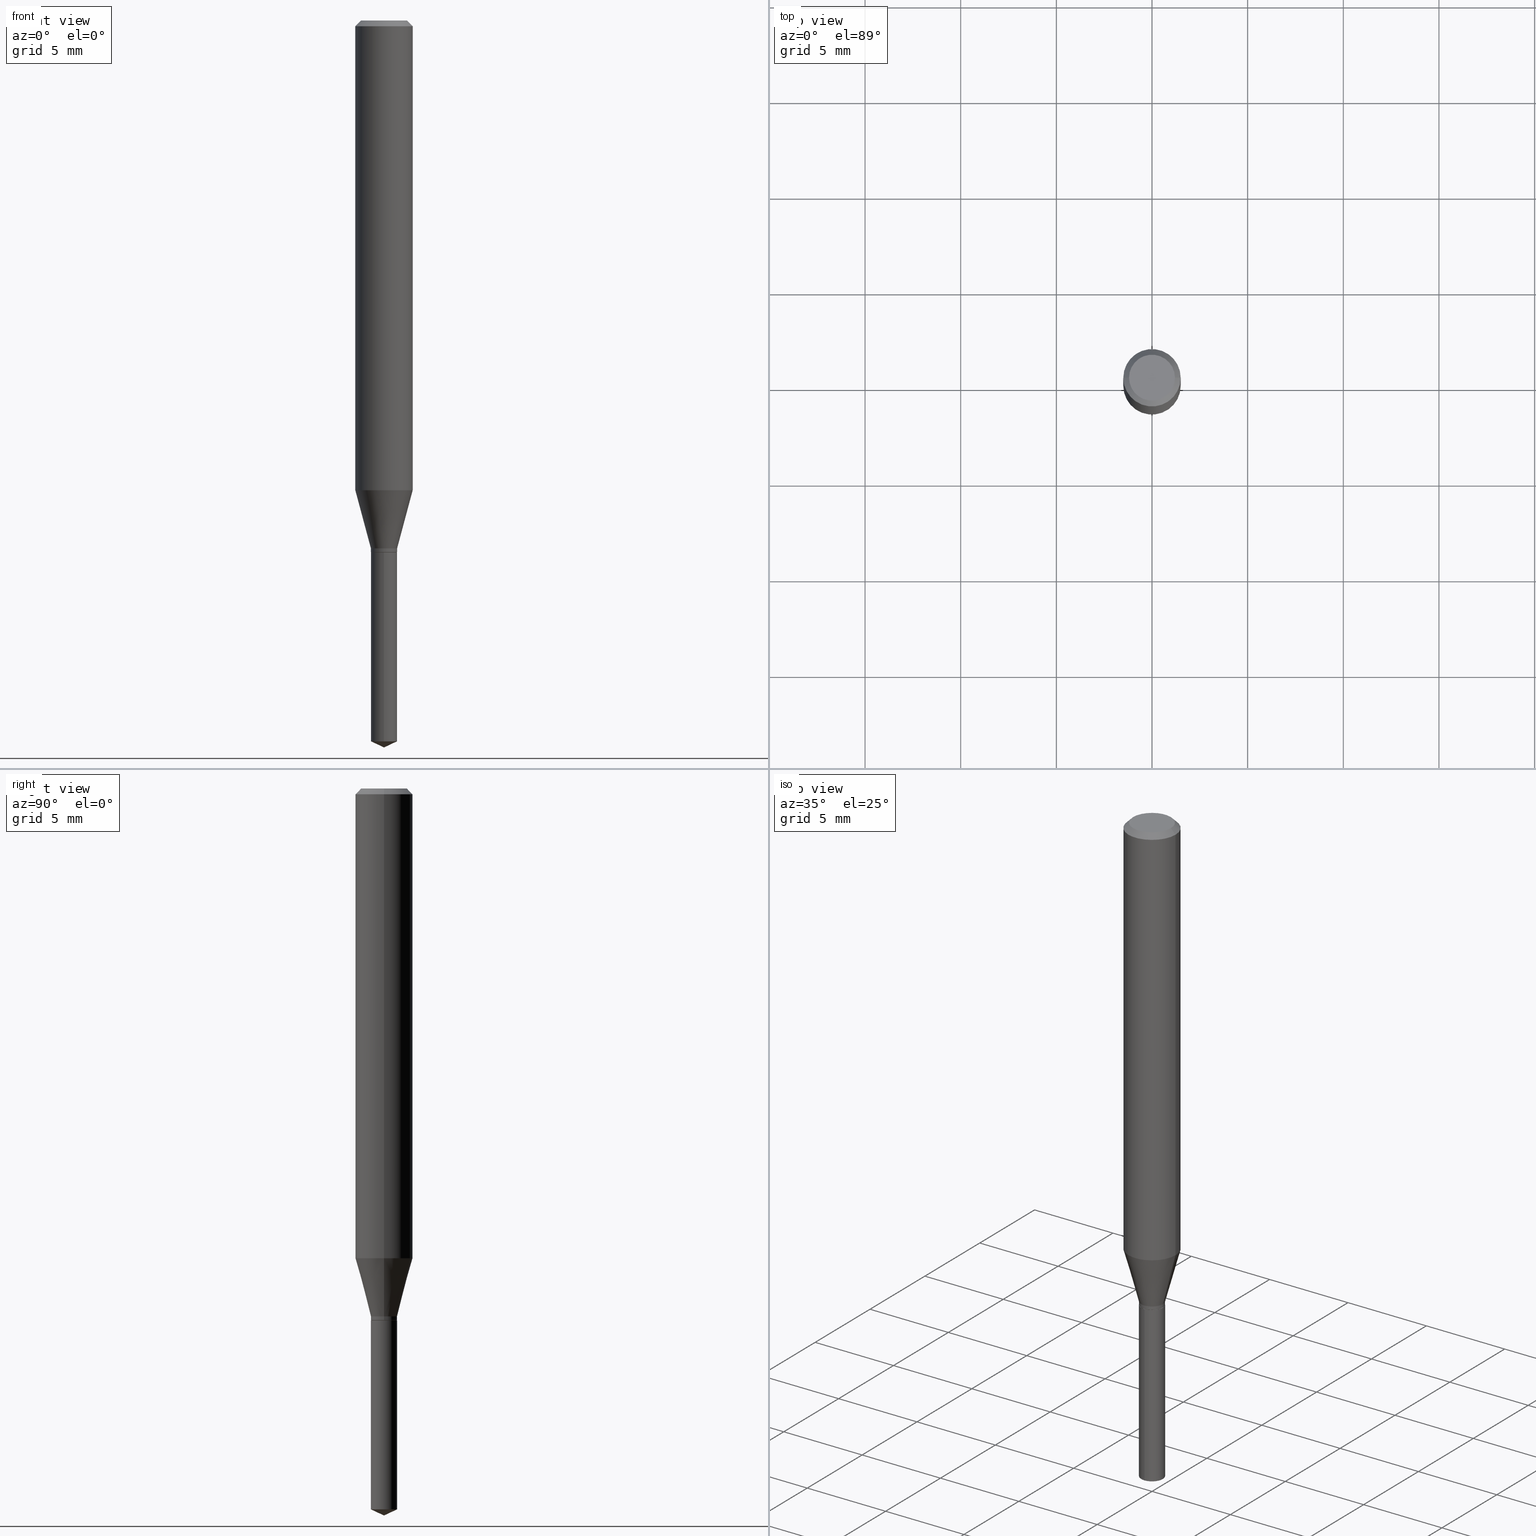
[diagram: canonical four-view strip — front | top / right | iso, engineering-drawing reading convention]
A machine part, canonical four-view strip (front | top / right | iso — engineering-drawing reading convention). The complete STEP part file that produces these views, byte-faithful:
ISO-10303-21;
HEADER;
FILE_DESCRIPTION (( 'STEP AP203' ),
    '1' );
FILE_NAME ('07869.STEP',
    '2024-04-24T04:56:01',
    ( '' ),
    ( '' ),
    'SwSTEP 2.0',
    'SolidWorks 2023',
    '' );
FILE_SCHEMA (( 'CONFIG_CONTROL_DESIGN' ));
ENDSEC;

DATA;
#1 = CARTESIAN_POINT ( 'NONE',  ( 0.02695000000000000173, -3.981336170682838022E-15, -1.086399999999999810 ) ) ;
#2 = ORIENTED_EDGE ( 'NONE', *, *, #385, .T. ) ;
#3 = CARTESIAN_POINT ( 'NONE',  ( 2.888098660104663328E-31, -4.123439461173779030E-17, -0.01181000000000006871 ) ) ;
#4 = ORIENTED_EDGE ( 'NONE', *, *, #218, .F. ) ;
#5 = APPROVAL_PERSON_ORGANIZATION ( #119, #370, #26 ) ;
#6 = EDGE_LOOP ( 'NONE', ( #456, #105, #411, #159 ) ) ;
#7 = ORIENTED_EDGE ( 'NONE', *, *, #330, .T. ) ;
#8 = ORIENTED_EDGE ( 'NONE', *, *, #265, .T. ) ;
#9 = AXIS2_PLACEMENT_3D ( 'NONE', #34, #172, #339 ) ;
#10 = VERTEX_POINT ( 'NONE', #228 ) ;
#11 = DIRECTION ( 'NONE',  ( 0.7071067811866199593, -2.468850131083015945E-15, 0.7071067811864750752 ) ) ;
#12 = EDGE_CURVE ( 'NONE', #10, #180, #347, .T. ) ;
#13 = FACE_OUTER_BOUND ( 'NONE', #72, .T. ) ;
#14 = EDGE_CURVE ( 'NONE', #107, #261, #247, .T. ) ;
#15 = CARTESIAN_POINT ( 'NONE',  ( 2.363793006999983413E-29, -3.374869943936449013E-15, -0.9666011690770388576 ) ) ;
#16 = DIRECTION ( 'NONE',  ( -2.445468806185136877E-29, 3.491481338843145188E-15, 1.000000000000000000 ) ) ;
#17 = FACE_OUTER_BOUND ( 'NONE', #99, .T. ) ;
#18 = COORDINATED_UNIVERSAL_TIME_OFFSET ( 5, 0, .BEHIND. ) ;
#19 = LINE ( 'NONE', #88, #195 ) ;
#20 = DATE_AND_TIME ( #483, #214 ) ;
#21 = DIRECTION ( 'NONE',  ( -2.445468806185136597E-29, 3.491481338843145583E-15, 1.000000000000000000 ) ) ;
#22 = CALENDAR_DATE ( 2024, 24, 4 ) ;
#23 = AXIS2_PLACEMENT_3D ( 'NONE', #395, #403, #51 ) ;
#24 = DIRECTION ( 'NONE',  ( 1.000000000000000000, -6.982962677686266711E-15, 0.000000000000000000 ) ) ;
#25 = CYLINDRICAL_SURFACE ( 'NONE', #429, 0.02695000000000000173 ) ;
#26 = APPROVAL_ROLE ( '' ) ;
#27 = DIRECTION ( 'NONE',  ( -1.000000000000000000, 6.982962677686265922E-15, -4.876176775795935793E-29 ) ) ;
#28 = ORIENTED_EDGE ( 'NONE', *, *, #69, .F. ) ;
#29 = AXIS2_PLACEMENT_3D ( 'NONE', #250, #277, #398 ) ;
#30 = VECTOR ( 'NONE', #453, 39.37007874015748143 ) ;
#31 = DIRECTION ( 'NONE',  ( -2.445470214571802116E-29, 3.491479321953280158E-15, 1.000000000000000000 ) ) ;
#32 = VERTEX_POINT ( 'NONE', #262 ) ;
#33 = EDGE_CURVE ( 'NONE', #169, #288, #112, .T. ) ;
#34 = CARTESIAN_POINT ( 'NONE',  ( 2.676565608369631234E-29, -3.821426325363821984E-15, -1.094499999999999806 ) ) ;
#35 = ORIENTED_EDGE ( 'NONE', *, *, #69, .T. ) ;
#36 = ORIENTED_EDGE ( 'NONE', *, *, #457, .T. ) ;
#37 = AXIS2_PLACEMENT_3D ( 'NONE', #393, #390, #421 ) ;
#38 = ORIENTED_EDGE ( 'NONE', *, *, #175, .F. ) ;
#39 = VERTEX_POINT ( 'NONE', #48 ) ;
#40 = EDGE_CURVE ( 'NONE', #32, #377, #386, .T. ) ;
#41 = DIRECTION ( 'NONE',  ( 1.000000000000000000, -6.982962677686266711E-15, 0.000000000000000000 ) ) ;
#42 = AXIS2_PLACEMENT_3D ( 'NONE', #310, #273, #149 ) ;
#43 = DIRECTION ( 'NONE',  ( 2.445468806185136597E-29, -3.491481338843145583E-15, -1.000000000000000000 ) ) ;
#44 =( NAMED_UNIT ( * ) PLANE_ANGLE_UNIT ( ) SI_UNIT ( $, .RADIAN. ) );
#45 = ADVANCED_FACE ( 'NONE', ( #424 ), #75, .T. ) ;
#46 = DIRECTION ( 'NONE',  ( -6.982962677686265133E-15, -1.000000000000000000, 5.068363624609022710E-15 ) ) ;
#47 = DIRECTION ( 'NONE',  ( 6.982962677686265922E-15, 1.000000000000000000, -3.491479321953280158E-15 ) ) ;
#48 = CARTESIAN_POINT ( 'NONE',  ( -0.05905000000000011628, -2.955294458470109520E-15, -0.9666011690770388576 ) ) ;
#49 = LINE ( 'NONE', #353, #190 ) ;
#50 = AXIS2_PLACEMENT_3D ( 'NONE', #92, #433, #482 ) ;
#51 = DIRECTION ( 'NONE',  ( 1.000000000000000000, -6.982962677686265133E-15, 0.000000000000000000 ) ) ;
#52 = LOCAL_TIME ( 0, 56, 1.000000000000000000, #122 ) ;
#53 = EDGE_LOOP ( 'NONE', ( #479, #243, #458, #308 ) ) ;
#54 = DIRECTION ( 'NONE',  ( 1.000000000000000000, -6.982962677686265133E-15, 0.000000000000000000 ) ) ;
#55 = APPROVAL_DATE_TIME ( #317, #370 ) ;
#56 = DIRECTION ( 'NONE',  ( 1.000000000000000000, -6.982962677686267499E-15, 4.876176775795936353E-29 ) ) ;
#57 = PERSON_AND_ORGANIZATION_ROLE ( 'design_owner' ) ;
#58 = DIRECTION ( 'NONE',  ( -2.445468806185136597E-29, 3.491481338843145583E-15, 1.000000000000000000 ) ) ;
#59 = COORDINATED_UNIVERSAL_TIME_OFFSET ( 5, 0, .BEHIND. ) ;
#60 = DIRECTION ( 'NONE',  ( 1.000000000000000000, -6.982962677686266711E-15, 4.876185090822587894E-29 ) ) ;
#61 = DATE_AND_TIME ( #22, #133 ) ;
#62 = ORIENTED_EDGE ( 'NONE', *, *, #309, .F. ) ;
#63 = CARTESIAN_POINT ( 'NONE',  ( 2.888098660104663328E-31, -4.123439461173779030E-17, -0.01181000000000006871 ) ) ;
#64 = EDGE_LOOP ( 'NONE', ( #234, #136, #301, #103 ) ) ;
#65 = DIRECTION ( 'NONE',  ( -2.445468806185136597E-29, 3.491481338843145583E-15, 1.000000000000000000 ) ) ;
#66 = EDGE_LOOP ( 'NONE', ( #469, #379, #374, #215 ) ) ;
#67 = AXIS2_PLACEMENT_3D ( 'NONE', #154, #43, #464 ) ;
#68 = AXIS2_PLACEMENT_3D ( 'NONE', #3, #140, #484 ) ;
#69 = EDGE_CURVE ( 'NONE', #210, #288, #79, .T. ) ;
#70 = DIRECTION ( 'NONE',  ( -1.000000000000000000, 6.982962677686266711E-15, 0.000000000000000000 ) ) ;
#71 = EDGE_LOOP ( 'NONE', ( #463, #415, #221, #28 ) ) ;
#72 = EDGE_LOOP ( 'NONE', ( #191, #35, #101, #141 ) ) ;
#73 = ORIENTED_EDGE ( 'NONE', *, *, #330, .F. ) ;
#74 = CONICAL_SURFACE ( 'NONE', #323, 84.42940631927388040, 1.134464013796313786 ) ;
#75 = CYLINDRICAL_SURFACE ( 'NONE', #42, 0.05905000000000006077 ) ;
#76 = CARTESIAN_POINT ( 'NONE',  ( 2.888098660104663328E-31, -4.123439461173779030E-17, -0.01181000000000006871 ) ) ;
#77 = LINE ( 'NONE', #352, #87 ) ;
#78 = AXIS2_PLACEMENT_3D ( 'NONE', #114, #150, #223 ) ;
#79 = CIRCLE ( 'NONE', #314, 0.02695000000000000173 ) ;
#80 = AXIS2_PLACEMENT_3D ( 'NONE', #391, #462, #47 ) ;
#81 = DIRECTION ( 'NONE',  ( -2.445468806185136597E-29, 3.491481338843145583E-15, 1.000000000000000000 ) ) ;
#82 = DIRECTION ( 'NONE',  ( -6.328713451373368590E-15, -0.9063077870366483824, 0.4226182617407029940 ) ) ;
#83 = DIRECTION ( 'NONE',  ( 1.000000000000000000, -6.982962677686265133E-15, 0.000000000000000000 ) ) ;
#84 = EDGE_CURVE ( 'NONE', #288, #377, #77, .T. ) ;
#85 = DIRECTION ( 'NONE',  ( -0.7071067811865453523, 2.468850131082234184E-15, -0.7071067811865496822 ) ) ;
#86 = SECURITY_CLASSIFICATION_LEVEL ( 'unclassified' ) ;
#87 = VECTOR ( 'NONE', #16, 39.37007874015748143 ) ;
#88 = CARTESIAN_POINT ( 'NONE',  ( -0.02695000000000000173, -3.601654059231846417E-15, -1.086399999999999810 ) ) ;
#89 = SECURITY_CLASSIFICATION ( '', '', #86 ) ;
#90 = ADVANCED_FACE ( 'NONE', ( #387 ), #211, .T. ) ;
#91 = APPROVAL_STATUS ( 'not_yet_approved' ) ;
#92 = CARTESIAN_POINT ( 'NONE',  ( 2.675342873966538993E-29, -3.819680584694400481E-15, -1.093999999999999861 ) ) ;
#93 = CARTESIAN_POINT ( 'NONE',  ( -0.04724000000000000421, 3.504923541997677355E-16, -3.380025165670481712E-19 ) ) ;
#94 = PERSON_AND_ORGANIZATION_ROLE ( 'classification_officer' ) ;
#95 = ADVANCED_FACE ( 'NONE', ( #13 ), #316, .T. ) ;
#96 = DIRECTION ( 'NONE',  ( -0.2588190451025213501, 5.211531920934551042E-15, 0.9659258262890682012 ) ) ;
#97 = CIRCLE ( 'NONE', #50, 0.02695000000000000173 ) ;
#98 = APPLICATION_PROTOCOL_DEFINITION ( 'international standard', 'config_control_design', 1994, #244 ) ;
#99 = EDGE_LOOP ( 'NONE', ( #220, #36, #217 ) ) ;
#100 = DIRECTION ( 'NONE',  ( 1.000000000000000000, -6.982962677686266711E-15, 4.876176775795935793E-29 ) ) ;
#101 = ORIENTED_EDGE ( 'NONE', *, *, #84, .T. ) ;
#102 = CARTESIAN_POINT ( 'NONE',  ( 4.132873053354867254E-48, -5.900647395337818946E-34, -1.690012582823346072E-19 ) ) ;
#103 = ORIENTED_EDGE ( 'NONE', *, *, #126, .F. ) ;
#104 = AXIS2_PLACEMENT_3D ( 'NONE', #15, #224, #345 ) ;
#105 = ORIENTED_EDGE ( 'NONE', *, *, #218, .T. ) ;
#106 = VERTEX_POINT ( 'NONE', #266 ) ;
#107 = VERTEX_POINT ( 'NONE', #187 ) ;
#108 = CYLINDRICAL_SURFACE ( 'NONE', #468, 0.02695000000000000173 ) ;
#109 = CIRCLE ( 'NONE', #397, 0.02695000000000000173 ) ;
#110 = DIRECTION ( 'NONE',  ( 0.2588190451025213501, 1.565188264969621968E-15, 0.9659258262890682012 ) ) ;
#111 = PERSON ( 'UNSPECIFIED', 'UNSPECIFIED', 'UNSPECIFIED', ('UNSPECIFIED'), ('UNSPECIFIED'), ('UNSPECIFIED') ) ;
#112 = LINE ( 'NONE', #115, #181 ) ;
#113 = EDGE_CURVE ( 'NONE', #299, #169, #467, .T. ) ;
#114 = CARTESIAN_POINT ( 'NONE',  ( 0.000000000000000000, 0.000000000000000000, 0.000000000000000000 ) ) ;
#115 = CARTESIAN_POINT ( 'NONE',  ( 0.02645000000000000129, -4.006125688188624162E-15, -1.094499999999999806 ) ) ;
#116 = DIRECTION ( 'NONE',  ( -2.445468806185136597E-29, 3.491481338843145583E-15, 1.000000000000000000 ) ) ;
#117 = EDGE_CURVE ( 'NONE', #381, #185, #426, .T. ) ;
#118 = FACE_OUTER_BOUND ( 'NONE', #64, .T. ) ;
#119 = PERSON_AND_ORGANIZATION ( #111, #153 ) ;
#120 = VECTOR ( 'NONE', #431, 39.37007874015748143 ) ;
#121 = DIRECTION ( 'NONE',  ( 0.7071067811865453523, -7.319954787623248157E-15, -0.7071067811865496822 ) ) ;
#122 = COORDINATED_UNIVERSAL_TIME_OFFSET ( 5, 0, .BEHIND. ) ;
#123 = CARTESIAN_POINT ( 'NONE',  ( 0.02645000000000000129, -4.006125688188624162E-15, -1.094499999999999806 ) ) ;
#124 = APPROVAL ( #251, 'UNSPECIFIED' ) ;
#125 = PERSON_AND_ORGANIZATION_ROLE ( 'creator' ) ;
#126 = EDGE_CURVE ( 'NONE', #377, #10, #461, .T. ) ;
#127 = CARTESIAN_POINT ( 'NONE',  ( 1.914912672873737351E-16, 0.02694999999999618187, -1.094500000000000028 ) ) ;
#128 = ADVANCED_BREP_SHAPE_REPRESENTATION ( '07869', ( #355, #359, #249 ), #341 ) ;
#129 = PERSON_AND_ORGANIZATION ( #111, #153 ) ;
#130 = AXIS2_PLACEMENT_3D ( 'NONE', #428, #81, #422 ) ;
#131 = LINE ( 'NONE', #194, #222 ) ;
#132 = CIRCLE ( 'NONE', #263, 0.04724000000000000421 ) ;
#133 = LOCAL_TIME ( 0, 56, 1.000000000000000000, #361 ) ;
#134 = CC_DESIGN_DATE_AND_TIME_ASSIGNMENT ( #207, #158, ( #89 ) ) ;
#135 = CYLINDRICAL_SURFACE ( 'NONE', #371, 0.05905000000000006077 ) ;
#136 = ORIENTED_EDGE ( 'NONE', *, *, #164, .T. ) ;
#137 = DIRECTION ( 'NONE',  ( -6.982962677686265133E-15, -1.000000000000000000, 5.068363624609022710E-15 ) ) ;
#138 = EDGE_CURVE ( 'NONE', #259, #180, #447, .T. ) ;
#139 = ORIENTED_EDGE ( 'NONE', *, *, #309, .T. ) ;
#140 = DIRECTION ( 'NONE',  ( -2.445468806185136597E-29, 3.491481338843145583E-15, 1.000000000000000000 ) ) ;
#141 = ORIENTED_EDGE ( 'NONE', *, *, #40, .F. ) ;
#142 = AXIS2_PLACEMENT_3D ( 'NONE', #102, #296, #27 ) ;
#143 = VECTOR ( 'NONE', #268, 39.37007874015748143 ) ;
#144 = EDGE_LOOP ( 'NONE', ( #8, #302, #413, #225 ) ) ;
#145 = ORIENTED_EDGE ( 'NONE', *, *, #138, .F. ) ;
#146 = CARTESIAN_POINT ( 'NONE',  ( 2.656757311039532110E-29, -3.793145326519192838E-15, -1.086399999999999810 ) ) ;
#147 = CONICAL_SURFACE ( 'NONE', #184, 0.05904999999999999832, 0.7853981633974452814 ) ;
#148 = DIRECTION ( 'NONE',  ( -2.445468806185136877E-29, 3.491481338843145188E-15, 1.000000000000000000 ) ) ;
#149 = DIRECTION ( 'NONE',  ( 1.000000000000000000, -6.982962677686266711E-15, 4.876176775795935793E-29 ) ) ;
#150 = DIRECTION ( 'NONE',  ( -2.445468806185136597E-29, 3.491481338843145583E-15, 1.000000000000000000 ) ) ;
#151 = DIRECTION ( 'NONE',  ( -2.445470214571802116E-29, 3.491479321953280158E-15, 1.000000000000000000 ) ) ;
#152 = VECTOR ( 'NONE', #110, 39.37007874015747433 ) ;
#153 = ORGANIZATION ( 'UNSPECIFIED', 'UNSPECIFIED', '' ) ;
#154 = CARTESIAN_POINT ( 'NONE',  ( 2.888098660104663328E-31, -4.123439461173779030E-17, -0.01181000000000006871 ) ) ;
#155 = LINE ( 'NONE', #274, #120 ) ;
#156 = EDGE_CURVE ( 'NONE', #377, #32, #419, .T. ) ;
#157 = CARTESIAN_POINT ( 'NONE',  ( -0.02645000000000000129, -3.630838544581165261E-15, -1.094499999999999806 ) ) ;
#158 = DATE_TIME_ROLE ( 'classification_date' ) ;
#159 = ORIENTED_EDGE ( 'NONE', *, *, #272, .F. ) ;
#160 = PLANE ( 'NONE',  #173 ) ;
#161 = MECHANICAL_CONTEXT ( 'NONE', #171, 'mechanical' ) ;
#162 = AXIS2_PLACEMENT_3D ( 'NONE', #212, #31, #137 ) ;
#163 = CARTESIAN_POINT ( 'NONE',  ( 8.265746106709734507E-48, -1.180129479067563789E-33, -3.380025165646692144E-19 ) ) ;
#164 = EDGE_CURVE ( 'NONE', #32, #39, #19, .T. ) ;
#165 = CALENDAR_DATE ( 2024, 24, 4 ) ;
#166 = LINE ( 'NONE', #337, #257 ) ;
#167 = PERSON_AND_ORGANIZATION ( #111, #153 ) ;
#168 = CARTESIAN_POINT ( 'NONE',  ( 0.000000000000000000, 0.000000000000000000, 0.000000000000000000 ) ) ;
#169 = VERTEX_POINT ( 'NONE', #123 ) ;
#170 = ADVANCED_FACE ( 'NONE', ( #118 ), #236, .T. ) ;
#171 = APPLICATION_CONTEXT ( 'configuration controlled 3d designs of mechanical parts and assemblies' ) ;
#172 = DIRECTION ( 'NONE',  ( -2.445468806185136597E-29, 3.491481338843145583E-15, 1.000000000000000000 ) ) ;
#173 = AXIS2_PLACEMENT_3D ( 'NONE', #200, #321, #366 ) ;
#174 = ORIENTED_EDGE ( 'NONE', *, *, #113, .F. ) ;
#175 = EDGE_CURVE ( 'NONE', #261, #107, #486, .T. ) ;
#176 = FACE_OUTER_BOUND ( 'NONE', #450, .T. ) ;
#177 = ORIENTED_EDGE ( 'NONE', *, *, #272, .T. ) ;
#178 = ADVANCED_FACE ( 'NONE', ( #199 ), #160, .F. ) ;
#179 = DIRECTION ( 'NONE',  ( -2.445470214571802116E-29, 3.491479321953280158E-15, 1.000000000000000000 ) ) ;
#180 = VERTEX_POINT ( 'NONE', #400 ) ;
#181 = VECTOR ( 'NONE', #11, 39.37007874015748143 ) ;
#182 = EDGE_CURVE ( 'NONE', #246, #106, #487, .T. ) ;
#183 = ORIENTED_EDGE ( 'NONE', *, *, #33, .F. ) ;
#184 = AXIS2_PLACEMENT_3D ( 'NONE', #63, #412, #70 ) ;
#185 = VERTEX_POINT ( 'NONE', #206 ) ;
#186 = DESIGN_CONTEXT ( 'detailed design', #244, 'design' ) ;
#187 = CARTESIAN_POINT ( 'NONE',  ( 1.914912672873832260E-16, 0.02694999999999482185, -1.483533008612722748 ) ) ;
#188 = CARTESIAN_POINT ( 'NONE',  ( 2.656757311039532110E-29, -3.793145326519192838E-15, -1.086399999999999810 ) ) ;
#189 = FACE_OUTER_BOUND ( 'NONE', #255, .T. ) ;
#190 = VECTOR ( 'NONE', #82, 39.37007874015748143 ) ;
#191 = ORIENTED_EDGE ( 'NONE', *, *, #417, .F. ) ;
#192 = CARTESIAN_POINT ( 'NONE',  ( 0.02695000000000000173, -3.981336170682838022E-15, -1.086399999999999810 ) ) ;
#193 = CARTESIAN_POINT ( 'NONE',  ( 2.675342873966538993E-29, -3.819680584694400481E-15, -1.093999999999999861 ) ) ;
#194 = CARTESIAN_POINT ( 'NONE',  ( -0.02645000000000000129, -3.633487771755275673E-15, -1.094499999999999806 ) ) ;
#195 = VECTOR ( 'NONE', #96, 39.37007874015747433 ) ;
#196 = CONICAL_SURFACE ( 'NONE', #292, 0.02645000000000000129, 0.7853981633975507526 ) ;
#197 = LOCAL_TIME ( 0, 56, 1.000000000000000000, #18 ) ;
#198 = CARTESIAN_POINT ( 'NONE',  ( -0.05904999999999999832, 3.711095515056362547E-16, -0.01181000000000006871 ) ) ;
#199 = FACE_OUTER_BOUND ( 'NONE', #418, .T. ) ;
#200 = CARTESIAN_POINT ( 'NONE',  ( 6.623467627228202224E-29, 1.830762009353637179E-15, -1.094499999999999806 ) ) ;
#201 = APPROVAL_ROLE ( '' ) ;
#202 = VECTOR ( 'NONE', #121, 39.37007874015748143 ) ;
#203 = CARTESIAN_POINT ( 'NONE',  ( 0.02695000000000000173, -4.007871428858045665E-15, -1.093999999999999861 ) ) ;
#204 = CC_DESIGN_APPROVAL ( #124, ( #372 ) ) ;
#205 = PERSON_AND_ORGANIZATION ( #111, #153 ) ;
#206 = CARTESIAN_POINT ( 'NONE',  ( -1.881908441636181167E-16, -0.02695000000000382159, -1.094499999999999806 ) ) ;
#207 = DATE_AND_TIME ( #367, #197 ) ;
#208 = EDGE_LOOP ( 'NONE', ( #2, #304, #295, #183 ) ) ;
#209 = CARTESIAN_POINT ( 'NONE',  ( -1.881908441636181167E-16, -0.02695000000000382159, -1.094499999999999806 ) ) ;
#210 = VERTEX_POINT ( 'NONE', #445 ) ;
#211 = CONICAL_SURFACE ( 'NONE', #67, 0.05904999999999999832, 0.7853981633974452814 ) ;
#212 = CARTESIAN_POINT ( 'NONE',  ( 2.676565608369631794E-29, -3.821426325363822773E-15, -1.094499999999999806 ) ) ;
#213 = CONICAL_SURFACE ( 'NONE', #9, 0.02645000000000000129, 0.7853981633975507526 ) ;
#214 = LOCAL_TIME ( 0, 56, 1.000000000000000000, #59 ) ;
#215 = ORIENTED_EDGE ( 'NONE', *, *, #117, .F. ) ;
#216 = DIRECTION ( 'NONE',  ( -2.445468806185136597E-29, 3.491481338843145583E-15, 1.000000000000000000 ) ) ;
#217 = ORIENTED_EDGE ( 'NONE', *, *, #14, .F. ) ;
#218 = EDGE_CURVE ( 'NONE', #106, #180, #241, .T. ) ;
#219 = EDGE_CURVE ( 'NONE', #107, #381, #331, .T. ) ;
#220 = ORIENTED_EDGE ( 'NONE', *, *, #311, .F. ) ;
#221 = ORIENTED_EDGE ( 'NONE', *, *, #33, .T. ) ;
#222 = VECTOR ( 'NONE', #425, 39.37007874015748143 ) ;
#223 = DIRECTION ( 'NONE',  ( 1.000000000000000000, -6.982962677686267499E-15, 4.876176775795936353E-29 ) ) ;
#224 = DIRECTION ( 'NONE',  ( -2.445468806185136597E-29, 3.491481338843145583E-15, 1.000000000000000000 ) ) ;
#225 = ORIENTED_EDGE ( 'NONE', *, *, #84, .F. ) ;
#226 =( CONVERSION_BASED_UNIT ( 'INCH', #389 ) LENGTH_UNIT ( ) NAMED_UNIT ( #232 ) );
#227 = ADVANCED_FACE ( 'NONE', ( #325 ), #25, .T. ) ;
#228 = CARTESIAN_POINT ( 'NONE',  ( 0.05905000000000011628, -3.787213890053824327E-15, -0.9666011690770388576 ) ) ;
#229 = CARTESIAN_POINT ( 'NONE',  ( 3.658667988020872822E-29, -5.223602213574301462E-15, -1.496099999999999985 ) ) ;
#230 = EDGE_CURVE ( 'NONE', #106, #246, #132, .T. ) ;
#231 = DIRECTION ( 'NONE',  ( -2.445470214571802116E-29, 3.491479321953280158E-15, 1.000000000000000000 ) ) ;
#232 = DIMENSIONAL_EXPONENTS ( 1.000000000000000000, 0.000000000000000000, 0.000000000000000000, 0.000000000000000000, 0.000000000000000000, 0.000000000000000000, 0.000000000000000000 ) ;
#233 = DIRECTION ( 'NONE',  ( -6.982962677686265133E-15, -1.000000000000000000, 5.068363624609022710E-15 ) ) ;
#234 = ORIENTED_EDGE ( 'NONE', *, *, #156, .T. ) ;
#235 = CARTESIAN_POINT ( 'NONE',  ( 8.265746106709734507E-48, -1.180129479067563789E-33, -3.380025165646692144E-19 ) ) ;
#236 = CONICAL_SURFACE ( 'NONE', #29, 0.02695000000000000173, 0.2617993877991500740 ) ;
#237 = AXIS2_PLACEMENT_3D ( 'NONE', #439, #480, #285 ) ;
#238 = DIRECTION ( 'NONE',  ( -2.445468806185136597E-29, 3.491481338843145583E-15, 1.000000000000000000 ) ) ;
#239 = PERSON_AND_ORGANIZATION ( #111, #153 ) ;
#240 = ADVANCED_FACE ( 'NONE', ( #435 ), #196, .T. ) ;
#241 = LINE ( 'NONE', #472, #202 ) ;
#242 = DIRECTION ( 'NONE',  ( 0.000000000000000000, 0.000000000000000000, 1.000000000000000000 ) ) ;
#243 = ORIENTED_EDGE ( 'NONE', *, *, #416, .T. ) ;
#244 = APPLICATION_CONTEXT ( 'configuration controlled 3d designs of mechanical parts and assemblies' ) ;
#245 = FACE_OUTER_BOUND ( 'NONE', #452, .T. ) ;
#246 = VERTEX_POINT ( 'NONE', #93 ) ;
#247 = CIRCLE ( 'NONE', #37, 0.02695000000000000173 ) ;
#248 = PRODUCT ( '07869', '07869', '', ( #161 ) ) ;
#249 = AXIS2_PLACEMENT_3D ( 'NONE', #278, #242, #401 ) ;
#250 = CARTESIAN_POINT ( 'NONE',  ( 2.656757311039532110E-29, -3.793145326519192838E-15, -1.086399999999999810 ) ) ;
#251 = APPROVAL_STATUS ( 'not_yet_approved' ) ;
#252 = DIRECTION ( 'NONE',  ( -6.982962677686265133E-15, -1.000000000000000000, 5.068363624609022710E-15 ) ) ;
#253 = ADVANCED_FACE ( 'NONE', ( #17 ), #315, .T. ) ;
#254 = FACE_OUTER_BOUND ( 'NONE', #260, .T. ) ;
#255 = EDGE_LOOP ( 'NONE', ( #338, #459, #38 ) ) ;
#256 = FACE_OUTER_BOUND ( 'NONE', #66, .T. ) ;
#257 = VECTOR ( 'NONE', #373, 39.37007874015748143 ) ;
#258 = CC_DESIGN_SECURITY_CLASSIFICATION ( #89, ( #372 ) ) ;
#259 = VERTEX_POINT ( 'NONE', #290 ) ;
#260 = EDGE_LOOP ( 'NONE', ( #332, #139, #485, #145 ) ) ;
#261 = VERTEX_POINT ( 'NONE', #275 ) ;
#262 = CARTESIAN_POINT ( 'NONE',  ( -0.02695000000000000173, -3.614921688319449844E-15, -1.086399999999999810 ) ) ;
#263 = AXIS2_PLACEMENT_3D ( 'NONE', #235, #116, #356 ) ;
#264 = DIRECTION ( 'NONE',  ( -2.445470214571802116E-29, 3.491479321953280158E-15, 1.000000000000000000 ) ) ;
#265 = EDGE_CURVE ( 'NONE', #288, #210, #97, .T. ) ;
#266 = CARTESIAN_POINT ( 'NONE',  ( 0.04724000000000000421, -3.852183633974369345E-16, -3.380025165621689721E-19 ) ) ;
#267 = DIRECTION ( 'NONE',  ( -2.445468806185136597E-29, 3.491481338843145583E-15, 1.000000000000000000 ) ) ;
#268 = DIRECTION ( 'NONE',  ( -2.445468806185136877E-29, 3.491481338843145188E-15, 1.000000000000000000 ) ) ;
#269 = DIRECTION ( 'NONE',  ( -2.445468806185136597E-29, 3.491481338843145583E-15, 1.000000000000000000 ) ) ;
#270 = AXIS2_PLACEMENT_3D ( 'NONE', #344, #231, #46 ) ;
#271 = AXIS2_PLACEMENT_3D ( 'NONE', #163, #58, #60 ) ;
#272 = EDGE_CURVE ( 'NONE', #246, #259, #443, .T. ) ;
#273 = DIRECTION ( 'NONE',  ( -2.445468806185136597E-29, 3.491481338843145583E-15, 1.000000000000000000 ) ) ;
#274 = CARTESIAN_POINT ( 'NONE',  ( -0.05905000000000006077, 4.195754854663395916E-16, -2.904631170795524694E-30 ) ) ;
#275 = CARTESIAN_POINT ( 'NONE',  ( -1.881908441636086010E-16, -0.02695000000000517468, -1.483533008612722748 ) ) ;
#276 = PRODUCT_RELATED_PRODUCT_CATEGORY ( 'detail', '', ( #248 ) ) ;
#277 = DIRECTION ( 'NONE',  ( -2.445468806185136597E-29, 3.491481338843145583E-15, 1.000000000000000000 ) ) ;
#278 = CARTESIAN_POINT ( 'NONE',  ( 0.000000000000000000, 0.000000000000000000, 0.000000000000000000 ) ) ;
#279 = VECTOR ( 'NONE', #148, 39.37007874015748143 ) ;
#280 = VECTOR ( 'NONE', #327, 39.37007874015748143 ) ;
#281 = CC_DESIGN_APPROVAL ( #370, ( #89 ) ) ;
#282 = DIRECTION ( 'NONE',  ( 1.000000000000000000, -6.982962677686264344E-15, 0.000000000000000000 ) ) ;
#283 = ADVANCED_FACE ( 'NONE', ( #245 ), #333, .T. ) ;
#284 = COORDINATED_UNIVERSAL_TIME_OFFSET ( 5, 0, .BEHIND. ) ;
#285 = DIRECTION ( 'NONE',  ( -6.982962677686267499E-15, -1.000000000000000000, 3.520397390770472803E-15 ) ) ;
#286 = PRODUCT_DEFINITION_SHAPE ( 'NONE', 'NONE',  #328 ) ;
#287 = PERSON_AND_ORGANIZATION ( #111, #153 ) ;
#288 = VERTEX_POINT ( 'NONE', #203 ) ;
#289 = CC_DESIGN_PERSON_AND_ORGANIZATION_ASSIGNMENT ( #239, #94, ( #89 ) ) ;
#290 = CARTESIAN_POINT ( 'NONE',  ( -0.05904999999999999832, -1.288476683807753089E-15, -0.01181000000000006871 ) ) ;
#291 = DATE_TIME_ROLE ( 'creation_date' ) ;
#292 = AXIS2_PLACEMENT_3D ( 'NONE', #360, #21, #282 ) ;
#293 = CC_DESIGN_APPROVAL ( #407, ( #328 ) ) ;
#294 = CARTESIAN_POINT ( 'NONE',  ( 2.676565608369631794E-29, -3.821426325363822773E-15, -1.094499999999999806 ) ) ;
#295 = ORIENTED_EDGE ( 'NONE', *, *, #265, .F. ) ;
#296 = DIRECTION ( 'NONE',  ( 2.438088387897960049E-29, -3.491481338843145188E-15, -1.000000000000000000 ) ) ;
#297 = ORIENTED_EDGE ( 'NONE', *, *, #324, .F. ) ;
#298 = CARTESIAN_POINT ( 'NONE',  ( 1.914912672873833000E-16, 0.02694999999999617840, -1.094500000000000028 ) ) ;
#299 = VERTEX_POINT ( 'NONE', #157 ) ;
#300 = CLOSED_SHELL ( 'NONE', ( #442, #432, #253, #365, #476 ) ) ;
#301 = ORIENTED_EDGE ( 'NONE', *, *, #474, .F. ) ;
#302 = ORIENTED_EDGE ( 'NONE', *, *, #417, .T. ) ;
#303 = ORIENTED_EDGE ( 'NONE', *, *, #126, .T. ) ;
#304 = ORIENTED_EDGE ( 'NONE', *, *, #414, .T. ) ;
#305 = CIRCLE ( 'NONE', #420, 0.05905000000000011628 ) ;
#306 = APPROVAL_PERSON_ORGANIZATION ( #205, #124, #320 ) ;
#307 =( LENGTH_UNIT ( ) NAMED_UNIT ( * ) SI_UNIT ( $, .METRE. ) );
#308 = ORIENTED_EDGE ( 'NONE', *, *, #12, .F. ) ;
#309 = EDGE_CURVE ( 'NONE', #39, #10, #305, .T. ) ;
#310 = CARTESIAN_POINT ( 'NONE',  ( 0.000000000000000000, 0.000000000000000000, 0.000000000000000000 ) ) ;
#311 = EDGE_CURVE ( 'NONE', #441, #107, #166, .T. ) ;
#312 = CARTESIAN_POINT ( 'NONE',  ( -9.261968845786000133E-28, 1.322362114038720264E-13, 37.87397874015748300 ) ) ;
#313 = DIRECTION ( 'NONE',  ( -2.445468806185136597E-29, 3.491481338843145583E-15, 1.000000000000000000 ) ) ;
#314 = AXIS2_PLACEMENT_3D ( 'NONE', #193, #269, #83 ) ;
#315 = CONICAL_SURFACE ( 'NONE', #237, 84.42940631927388040, 1.134464013796313786 ) ;
#316 = CYLINDRICAL_SURFACE ( 'NONE', #78, 0.02695000000000000173 ) ;
#317 = DATE_AND_TIME ( #399, #488 ) ;
#318 = CC_DESIGN_PERSON_AND_ORGANIZATION_ASSIGNMENT ( #129, #477, ( #328 ) ) ;
#319 = CARTESIAN_POINT ( 'NONE',  ( 2.363793006999983413E-29, -3.374869943936449013E-15, -0.9666011690770388576 ) ) ;
#320 = APPROVAL_ROLE ( '' ) ;
#321 = DIRECTION ( 'NONE',  ( -2.438088387897960049E-29, 3.491481338843145188E-15, 1.000000000000000000 ) ) ;
#322 = CLOSED_SHELL ( 'NONE', ( #396, #90, #45, #170, #227, #95, #283, #336, #384, #375, #178, #240 ) ) ;
#323 = AXIS2_PLACEMENT_3D ( 'NONE', #312, #151, #351 ) ;
#324 = EDGE_CURVE ( 'NONE', #261, #185, #451, .T. ) ;
#325 = FACE_OUTER_BOUND ( 'NONE', #144, .T. ) ;
#326 = APPROVAL_DATE_TIME ( #406, #124 ) ;
#327 = DIRECTION ( 'NONE',  ( -2.445470214571802396E-29, 3.491479321953280158E-15, 1.000000000000000000 ) ) ;
#328 = PRODUCT_DEFINITION ( 'UNKNOWN', '', #372, #186 ) ;
#329 = APPROVAL_DATE_TIME ( #61, #407 ) ;
#330 = EDGE_CURVE ( 'NONE', #185, #381, #109, .T. ) ;
#331 = LINE ( 'NONE', #127, #280 ) ;
#332 = ORIENTED_EDGE ( 'NONE', *, *, #416, .F. ) ;
#333 = CONICAL_SURFACE ( 'NONE', #23, 0.02695000000000000173, 0.2617993877991500740 ) ;
#334 = CARTESIAN_POINT ( 'NONE',  ( 2.676565608369631234E-29, -3.821426325363821984E-15, -1.094499999999999806 ) ) ;
#335 = ORIENTED_EDGE ( 'NONE', *, *, #138, .T. ) ;
#336 = ADVANCED_FACE ( 'NONE', ( #254 ), #135, .T. ) ;
#337 = CARTESIAN_POINT ( 'NONE',  ( 3.658668015054778287E-29, -5.223602213574301462E-15, -1.496099999999999985 ) ) ;
#338 = ORIENTED_EDGE ( 'NONE', *, *, #457, .F. ) ;
#339 = DIRECTION ( 'NONE',  ( 1.000000000000000000, -6.982962677686264344E-15, 0.000000000000000000 ) ) ;
#340 = ORIENTED_EDGE ( 'NONE', *, *, #219, .T. ) ;
#341 =( GEOMETRIC_REPRESENTATION_CONTEXT ( 3 ) GLOBAL_UNCERTAINTY_ASSIGNED_CONTEXT ( ( #455 ) ) GLOBAL_UNIT_ASSIGNED_CONTEXT ( ( #226, #44, #446 ) ) REPRESENTATION_CONTEXT ( 'NONE', 'WORKASPACE' ) );
#342 = ORIENTED_EDGE ( 'NONE', *, *, #175, .T. ) ;
#343 = EDGE_LOOP ( 'NONE', ( #4, #357, #177, #335 ) ) ;
#344 = CARTESIAN_POINT ( 'NONE',  ( 2.676565608369631794E-29, -3.821426325363822773E-15, -1.094499999999999806 ) ) ;
#345 = DIRECTION ( 'NONE',  ( 1.000000000000000000, -6.982962677686266711E-15, 0.000000000000000000 ) ) ;
#346 = AXIS2_PLACEMENT_3D ( 'NONE', #188, #313, #54 ) ;
#347 = LINE ( 'NONE', #470, #279 ) ;
#348 = EDGE_LOOP ( 'NONE', ( #342, #340, #73, #297 ) ) ;
#349 = CARTESIAN_POINT ( 'NONE',  ( -0.02695000000000000173, 1.914912672873470124E-16, -1.325653006823697257E-30 ) ) ;
#350 = DIRECTION ( 'NONE',  ( 1.000000000000000000, -6.982962677686265133E-15, 0.000000000000000000 ) ) ;
#351 = DIRECTION ( 'NONE',  ( -6.982962677686267499E-15, -1.000000000000000000, 3.520397390770472803E-15 ) ) ;
#352 = CARTESIAN_POINT ( 'NONE',  ( 0.02695000000000000173, -1.881908441636449133E-16, 1.314129641077004940E-30 ) ) ;
#353 = CARTESIAN_POINT ( 'NONE',  ( 3.658664905062460986E-29, -5.223606628546217219E-15, -1.496099999999999985 ) ) ;
#354 = VECTOR ( 'NONE', #85, 39.37007874015748143 ) ;
#355 = MANIFOLD_SOLID_BREP ( 'Body-Move/Copy2[1]', #300 ) ;
#356 = DIRECTION ( 'NONE',  ( 1.000000000000000000, -6.982962677686266711E-15, 4.876185090822587894E-29 ) ) ;
#357 = ORIENTED_EDGE ( 'NONE', *, *, #182, .F. ) ;
#358 = DIRECTION ( 'NONE',  ( -6.982962677686265133E-15, -1.000000000000000000, 0.000000000000000000 ) ) ;
#359 = MANIFOLD_SOLID_BREP ( 'Body-Move/Copy2[2]', #322 ) ;
#360 = CARTESIAN_POINT ( 'NONE',  ( 2.676565608369631234E-29, -3.821426325363821984E-15, -1.094499999999999806 ) ) ;
#361 = COORDINATED_UNIVERSAL_TIME_OFFSET ( 5, 0, .BEHIND. ) ;
#362 = AXIS2_PLACEMENT_3D ( 'NONE', #146, #267, #350 ) ;
#363 = CIRCLE ( 'NONE', #68, 0.05904999999999999832 ) ;
#364 = DIRECTION ( 'NONE',  ( -2.445468806185136597E-29, 3.491481338843145583E-15, 1.000000000000000000 ) ) ;
#365 = ADVANCED_FACE ( 'NONE', ( #256 ), #368, .T. ) ;
#366 = DIRECTION ( 'NONE',  ( 1.000000000000000000, -6.982962677686265922E-15, 4.876176775795935793E-29 ) ) ;
#367 = CALENDAR_DATE ( 2024, 24, 4 ) ;
#368 = CYLINDRICAL_SURFACE ( 'NONE', #162, 0.02695000000000000173 ) ;
#369 = ORIENTED_EDGE ( 'NONE', *, *, #385, .F. ) ;
#370 = APPROVAL ( #91, 'UNSPECIFIED' ) ;
#371 = AXIS2_PLACEMENT_3D ( 'NONE', #410, #65, #100 ) ;
#372 = PRODUCT_DEFINITION_FORMATION_WITH_SPECIFIED_SOURCE ( 'ANY', '', #248, .NOT_KNOWN. ) ;
#373 = DIRECTION ( 'NONE',  ( 6.439704144417024042E-15, 0.9063077870366512689, 0.4226182617406966657 ) ) ;
#374 = ORIENTED_EDGE ( 'NONE', *, *, #324, .T. ) ;
#375 = ADVANCED_FACE ( 'NONE', ( #176 ), #489, .F. ) ;
#376 = DIRECTION ( 'NONE',  ( 1.000000000000000000, -6.982962677686264344E-15, 0.000000000000000000 ) ) ;
#377 = VERTEX_POINT ( 'NONE', #1 ) ;
#378 = CC_DESIGN_PERSON_AND_ORGANIZATION_ASSIGNMENT ( #434, #444, ( #372 ) ) ;
#379 = ORIENTED_EDGE ( 'NONE', *, *, #14, .T. ) ;
#380 = ORIENTED_EDGE ( 'NONE', *, *, #117, .T. ) ;
#381 = VERTEX_POINT ( 'NONE', #298 ) ;
#382 = FACE_OUTER_BOUND ( 'NONE', #430, .T. ) ;
#383 = DIRECTION ( 'NONE',  ( -2.445468806185136597E-29, 3.491481338843145583E-15, 1.000000000000000000 ) ) ;
#384 = ADVANCED_FACE ( 'NONE', ( #408 ), #147, .T. ) ;
#385 = EDGE_CURVE ( 'NONE', #169, #299, #388, .T. ) ;
#386 = CIRCLE ( 'NONE', #362, 0.02695000000000000173 ) ;
#387 = FACE_OUTER_BOUND ( 'NONE', #6, .T. ) ;
#388 = CIRCLE ( 'NONE', #438, 0.02645000000000000129 ) ;
#389 = LENGTH_MEASURE_WITH_UNIT ( LENGTH_MEASURE( 0.02539999999999999897 ), #307 );
#390 = DIRECTION ( 'NONE',  ( -2.445470214571802116E-29, 3.491479321953280158E-15, 1.000000000000000000 ) ) ;
#391 = CARTESIAN_POINT ( 'NONE',  ( 2.676565608369631794E-29, -3.821426325363822773E-15, -1.094499999999999806 ) ) ;
#392 = CC_DESIGN_DATE_AND_TIME_ASSIGNMENT ( #20, #291, ( #328 ) ) ;
#393 = CARTESIAN_POINT ( 'NONE',  ( 3.627934243417300809E-29, -5.179727030492415655E-15, -1.483533008612722748 ) ) ;
#394 = LINE ( 'NONE', #349, #143 ) ;
#395 = CARTESIAN_POINT ( 'NONE',  ( 2.656757311039532110E-29, -3.793145326519192838E-15, -1.086399999999999810 ) ) ;
#396 = ADVANCED_FACE ( 'NONE', ( #449 ), #213, .T. ) ;
#397 = AXIS2_PLACEMENT_3D ( 'NONE', #294, #179, #252 ) ;
#398 = DIRECTION ( 'NONE',  ( 1.000000000000000000, -6.982962677686265133E-15, 0.000000000000000000 ) ) ;
#399 = CALENDAR_DATE ( 2024, 24, 4 ) ;
#400 = CARTESIAN_POINT ( 'NONE',  ( 0.05904999999999999832, -4.535783407291118600E-16, -0.01181000000000006871 ) ) ;
#401 = DIRECTION ( 'NONE',  ( 1.000000000000000000, 0.000000000000000000, 0.000000000000000000 ) ) ;
#402 = EDGE_CURVE ( 'NONE', #180, #259, #363, .T. ) ;
#403 = DIRECTION ( 'NONE',  ( -2.445468806185136597E-29, 3.491481338843145583E-15, 1.000000000000000000 ) ) ;
#404 = ORIENTED_EDGE ( 'NONE', *, *, #182, .T. ) ;
#405 = DIRECTION ( 'NONE',  ( -2.445470214571802116E-29, 3.491479321953280158E-15, 1.000000000000000000 ) ) ;
#406 = DATE_AND_TIME ( #165, #52 ) ;
#407 = APPROVAL ( #437, 'UNSPECIFIED' ) ;
#408 = FACE_OUTER_BOUND ( 'NONE', #343, .T. ) ;
#409 = ORIENTED_EDGE ( 'NONE', *, *, #164, .F. ) ;
#410 = CARTESIAN_POINT ( 'NONE',  ( 0.000000000000000000, 0.000000000000000000, 0.000000000000000000 ) ) ;
#411 = ORIENTED_EDGE ( 'NONE', *, *, #402, .T. ) ;
#412 = DIRECTION ( 'NONE',  ( 2.445468806185136597E-29, -3.491481338843145583E-15, -1.000000000000000000 ) ) ;
#413 = ORIENTED_EDGE ( 'NONE', *, *, #156, .F. ) ;
#414 = EDGE_CURVE ( 'NONE', #299, #210, #131, .T. ) ;
#415 = ORIENTED_EDGE ( 'NONE', *, *, #113, .T. ) ;
#416 = EDGE_CURVE ( 'NONE', #39, #259, #155, .T. ) ;
#417 = EDGE_CURVE ( 'NONE', #210, #32, #394, .T. ) ;
#418 = EDGE_LOOP ( 'NONE', ( #369, #174 ) ) ;
#419 = CIRCLE ( 'NONE', #346, 0.02695000000000000173 ) ;
#420 = AXIS2_PLACEMENT_3D ( 'NONE', #319, #364, #24 ) ;
#421 = DIRECTION ( 'NONE',  ( -6.982962677686265133E-15, -1.000000000000000000, 0.000000000000000000 ) ) ;
#422 = DIRECTION ( 'NONE',  ( 1.000000000000000000, -6.982962677686264344E-15, 0.000000000000000000 ) ) ;
#423 = PLANE ( 'NONE',  #80 ) ;
#424 = FACE_OUTER_BOUND ( 'NONE', #53, .T. ) ;
#425 = DIRECTION ( 'NONE',  ( -0.7071067811866199593, 7.493145998870616062E-15, 0.7071067811864750752 ) ) ;
#426 = CIRCLE ( 'NONE', #270, 0.02695000000000000173 ) ;
#427 = AXIS2_PLACEMENT_3D ( 'NONE', #475, #405, #358 ) ;
#428 = CARTESIAN_POINT ( 'NONE',  ( 2.676565608369631234E-29, -3.821426325363821984E-15, -1.094499999999999806 ) ) ;
#429 = AXIS2_PLACEMENT_3D ( 'NONE', #168, #238, #56 ) ;
#430 = EDGE_LOOP ( 'NONE', ( #7, #380 ) ) ;
#431 = DIRECTION ( 'NONE',  ( -2.445468806185136877E-29, 3.491481338843145188E-15, 1.000000000000000000 ) ) ;
#432 = ADVANCED_FACE ( 'NONE', ( #189 ), #74, .T. ) ;
#433 = DIRECTION ( 'NONE',  ( -2.445468806185136597E-29, 3.491481338843145583E-15, 1.000000000000000000 ) ) ;
#434 = PERSON_AND_ORGANIZATION ( #111, #153 ) ;
#435 = FACE_OUTER_BOUND ( 'NONE', #71, .T. ) ;
#436 = AXIS2_PLACEMENT_3D ( 'NONE', #76, #383, #41 ) ;
#437 = APPROVAL_STATUS ( 'not_yet_approved' ) ;
#438 = AXIS2_PLACEMENT_3D ( 'NONE', #334, #216, #376 ) ;
#439 = CARTESIAN_POINT ( 'NONE',  ( -9.261968845786000133E-28, 1.322362114038720264E-13, 37.87397874015748300 ) ) ;
#440 = CC_DESIGN_PERSON_AND_ORGANIZATION_ASSIGNMENT ( #167, #57, ( #248 ) ) ;
#441 = VERTEX_POINT ( 'NONE', #229 ) ;
#442 = ADVANCED_FACE ( 'NONE', ( #460 ), #108, .T. ) ;
#443 = LINE ( 'NONE', #198, #354 ) ;
#444 = PERSON_AND_ORGANIZATION_ROLE ( 'design_supplier' ) ;
#445 = CARTESIAN_POINT ( 'NONE',  ( -0.02695000000000000173, -3.614921688319449844E-15, -1.093999999999999861 ) ) ;
#446 =( NAMED_UNIT ( * ) SI_UNIT ( $, .STERADIAN. ) SOLID_ANGLE_UNIT ( ) );
#447 = CIRCLE ( 'NONE', #436, 0.05904999999999999832 ) ;
#448 = APPROVAL_PERSON_ORGANIZATION ( #287, #407, #201 ) ;
#449 = FACE_OUTER_BOUND ( 'NONE', #208, .T. ) ;
#450 = EDGE_LOOP ( 'NONE', ( #404, #454 ) ) ;
#451 = LINE ( 'NONE', #209, #30 ) ;
#452 = EDGE_LOOP ( 'NONE', ( #409, #490, #303, #62 ) ) ;
#453 = DIRECTION ( 'NONE',  ( -2.445470214571802396E-29, 3.491479321953280158E-15, 1.000000000000000000 ) ) ;
#454 = ORIENTED_EDGE ( 'NONE', *, *, #230, .T. ) ;
#455 = UNCERTAINTY_MEASURE_WITH_UNIT (LENGTH_MEASURE( 1.000000000000000082E-05 ), #226, 'distance_accuracy_value', 'NONE');
#456 = ORIENTED_EDGE ( 'NONE', *, *, #230, .F. ) ;
#457 = EDGE_CURVE ( 'NONE', #441, #261, #49, .T. ) ;
#458 = ORIENTED_EDGE ( 'NONE', *, *, #402, .F. ) ;
#459 = ORIENTED_EDGE ( 'NONE', *, *, #311, .T. ) ;
#460 = FACE_OUTER_BOUND ( 'NONE', #348, .T. ) ;
#461 = LINE ( 'NONE', #192, #152 ) ;
#462 = DIRECTION ( 'NONE',  ( 2.445470214571801836E-29, -3.491479321953280158E-15, -1.000000000000000000 ) ) ;
#463 = ORIENTED_EDGE ( 'NONE', *, *, #414, .F. ) ;
#464 = DIRECTION ( 'NONE',  ( -1.000000000000000000, 6.982962677686266711E-15, 0.000000000000000000 ) ) ;
#465 = CC_DESIGN_PERSON_AND_ORGANIZATION_ASSIGNMENT ( #481, #125, ( #372 ) ) ;
#466 = CARTESIAN_POINT ( 'NONE',  ( 2.676565608369631794E-29, -3.821426325363822773E-15, -1.094499999999999806 ) ) ;
#467 = CIRCLE ( 'NONE', #130, 0.02645000000000000129 ) ;
#468 = AXIS2_PLACEMENT_3D ( 'NONE', #466, #264, #233 ) ;
#469 = ORIENTED_EDGE ( 'NONE', *, *, #219, .F. ) ;
#470 = CARTESIAN_POINT ( 'NONE',  ( 0.05905000000000006077, -4.123439461173744764E-16, 2.879382386107503023E-30 ) ) ;
#471 = SHAPE_DEFINITION_REPRESENTATION ( #286, #128 ) ;
#472 = CARTESIAN_POINT ( 'NONE',  ( 0.05904999999999999832, -4.463468013801466955E-16, -0.01181000000000006871 ) ) ;
#473 = APPLICATION_PROTOCOL_DEFINITION ( 'international standard', 'config_control_design', 1994, #171 ) ;
#474 = EDGE_CURVE ( 'NONE', #10, #39, #478, .T. ) ;
#475 = CARTESIAN_POINT ( 'NONE',  ( 3.627934243417300809E-29, -5.179727030492415655E-15, -1.483533008612722748 ) ) ;
#476 = ADVANCED_FACE ( 'NONE', ( #382 ), #423, .F. ) ;
#477 = PERSON_AND_ORGANIZATION_ROLE ( 'creator' ) ;
#478 = CIRCLE ( 'NONE', #104, 0.05905000000000011628 ) ;
#479 = ORIENTED_EDGE ( 'NONE', *, *, #474, .T. ) ;
#480 = DIRECTION ( 'NONE',  ( -2.445470214571802116E-29, 3.491479321953280158E-15, 1.000000000000000000 ) ) ;
#481 = PERSON_AND_ORGANIZATION ( #111, #153 ) ;
#482 = DIRECTION ( 'NONE',  ( 1.000000000000000000, -6.982962677686265133E-15, 0.000000000000000000 ) ) ;
#483 = CALENDAR_DATE ( 2024, 24, 4 ) ;
#484 = DIRECTION ( 'NONE',  ( 1.000000000000000000, -6.982962677686266711E-15, 0.000000000000000000 ) ) ;
#485 = ORIENTED_EDGE ( 'NONE', *, *, #12, .T. ) ;
#486 = CIRCLE ( 'NONE', #427, 0.02695000000000000173 ) ;
#487 = CIRCLE ( 'NONE', #271, 0.04724000000000000421 ) ;
#488 = LOCAL_TIME ( 0, 56, 1.000000000000000000, #284 ) ;
#489 = PLANE ( 'NONE',  #142 ) ;
#490 = ORIENTED_EDGE ( 'NONE', *, *, #40, .T. ) ;
ENDSEC;
END-ISO-10303-21;
